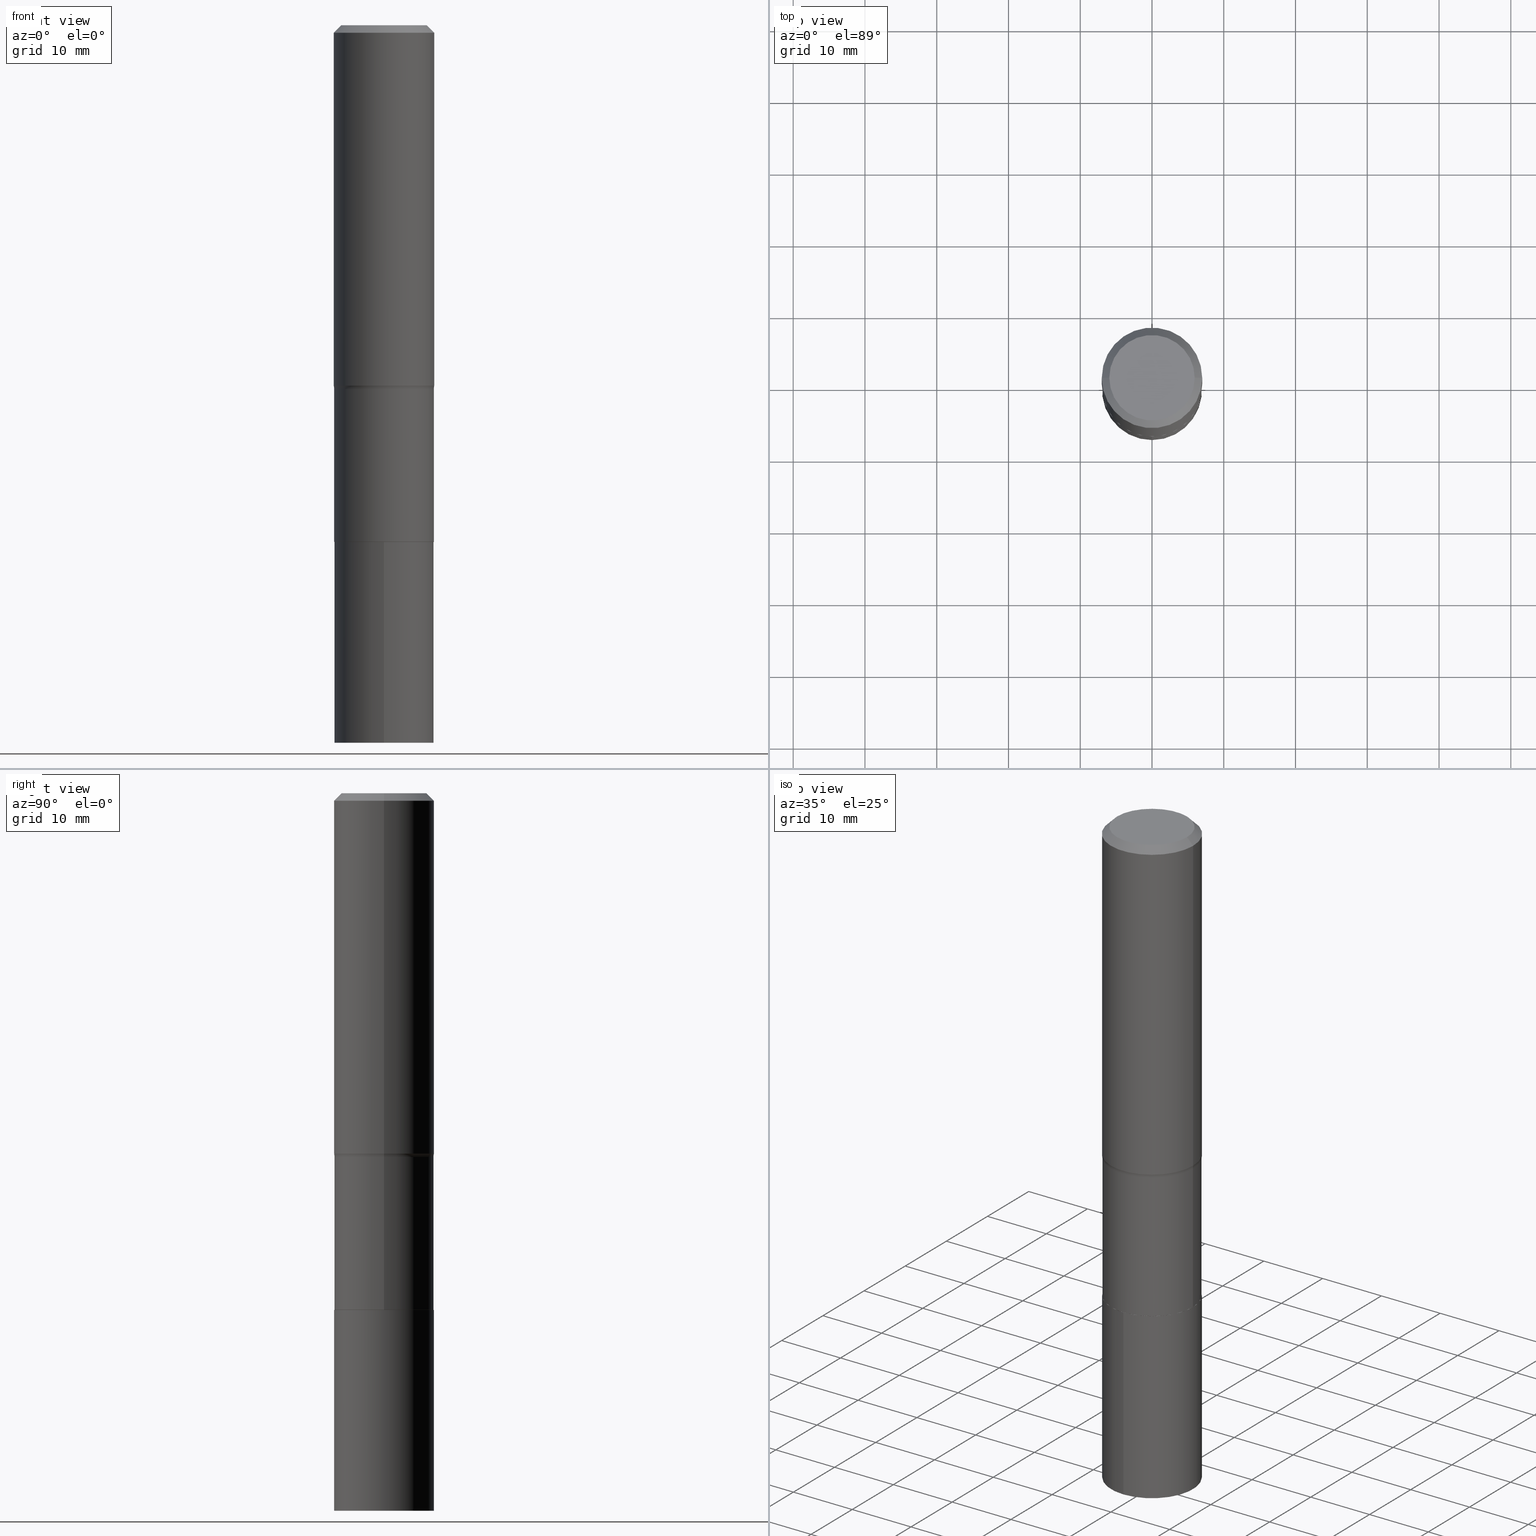
[diagram: canonical four-view strip — front | top / right | iso, engineering-drawing reading convention]
A machine part, canonical four-view strip (front | top / right | iso — engineering-drawing reading convention). The complete STEP part file that produces these views, byte-faithful:
ISO-10303-21;
HEADER;
FILE_DESCRIPTION (( 'STEP AP203' ),
    '1' );
FILE_NAME ('58536.STEP',
    '2024-04-19T14:41:50',
    ( '' ),
    ( '' ),
    'SwSTEP 2.0',
    'SolidWorks 2023',
    '' );
FILE_SCHEMA (( 'CONFIG_CONTROL_DESIGN' ));
ENDSEC;

DATA;
#1 = CARTESIAN_POINT ( 'NONE',  ( 1.942979110936090781E-15, 0.2734499999999901454, -2.835000000000000853 ) ) ;
#2 = ORIENTED_EDGE ( 'NONE', *, *, #462, .F. ) ;
#3 = DIRECTION ( 'NONE',  ( -6.982962677686265922E-15, -1.000000000000000000, 3.996120670929621909E-15 ) ) ;
#4 = ORIENTED_EDGE ( 'NONE', *, *, #131, .F. ) ;
#5 = AXIS2_PLACEMENT_3D ( 'NONE', #386, #62, #35 ) ;
#6 = DIRECTION ( 'NONE',  ( -2.445506570297261110E-29, 3.491427258485183651E-15, 1.000000000000000000 ) ) ;
#7 = AXIS2_PLACEMENT_3D ( 'NONE', #331, #83, #183 ) ;
#8 = DIRECTION ( 'NONE',  ( -2.445468806185136597E-29, 3.491481338843145583E-15, 1.000000000000000000 ) ) ;
#9 = ADVANCED_FACE ( 'NONE', ( #313 ), #358, .T. ) ;
#10 = ORIENTED_EDGE ( 'NONE', *, *, #234, .T. ) ;
#11 = DIRECTION ( 'NONE',  ( -2.445468806185136597E-29, 3.491481338843145583E-15, 1.000000000000000000 ) ) ;
#12 = DIRECTION ( 'NONE',  ( -2.445468806185136597E-29, 3.491481338843145583E-15, 1.000000000000000000 ) ) ;
#13 = VECTOR ( 'NONE', #318, 39.37007874015748143 ) ;
#14 = ORIENTED_EDGE ( 'NONE', *, *, #41, .F. ) ;
#15 = AXIS2_PLACEMENT_3D ( 'NONE', #378, #12, #451 ) ;
#16 = CARTESIAN_POINT ( 'NONE',  ( 9.627852306002447774E-29, -1.374590243447099296E-14, -3.937000000000001165 ) ) ;
#17 = ORIENTED_EDGE ( 'NONE', *, *, #208, .F. ) ;
#18 = CARTESIAN_POINT ( 'NONE',  ( 4.836104818574080005E-29, -6.904675980341459968E-15, -1.977577798720021152 ) ) ;
#19 = ORIENTED_EDGE ( 'NONE', *, *, #422, .T. ) ;
#20 = ORIENTED_EDGE ( 'NONE', *, *, #38, .F. ) ;
#21 = AXIS2_PLACEMENT_3D ( 'NONE', #286, #393, #72 ) ;
#22 = AXIS2_PLACEMENT_3D ( 'NONE', #16, #164, #239 ) ;
#23 = CARTESIAN_POINT ( 'NONE',  ( -1.002970424325033577E-46, 1.431975951230896486E-32, 4.101342130344485961E-18 ) ) ;
#24 = VERTEX_POINT ( 'NONE', #207 ) ;
#25 = PERSON_AND_ORGANIZATION ( #147, #194 ) ;
#26 = LINE ( 'NONE', #141, #273 ) ;
#27 = CC_DESIGN_DATE_AND_TIME_ASSIGNMENT ( #248, #246, ( #399 ) ) ;
#28 = CARTESIAN_POINT ( 'NONE',  ( 1.942979110936076976E-15, 0.2734499999999862596, -3.937000000000002498 ) ) ;
#29 = VECTOR ( 'NONE', #395, 39.37007874015748143 ) ;
#30 = CONICAL_SURFACE ( 'NONE', #15, 0.2729500000000000259, 0.7853981633972775267 ) ;
#31 = APPROVAL_ROLE ( '' ) ;
#32 = CARTESIAN_POINT ( 'NONE',  ( 0.2734499999999999709, -1.909491144213309629E-15, 1.333390539341398475E-29 ) ) ;
#33 = APPROVAL_STATUS ( 'not_yet_approved' ) ;
#34 = CARTESIAN_POINT ( 'NONE',  ( 6.932904065534861534E-29, -9.898349595620316510E-15, -2.834999999999999520 ) ) ;
#35 = DIRECTION ( 'NONE',  ( -6.982962677686265922E-15, -1.000000000000000000, 3.996120670929621909E-15 ) ) ;
#36 =( GEOMETRIC_REPRESENTATION_CONTEXT ( 3 ) GLOBAL_UNCERTAINTY_ASSIGNED_CONTEXT ( ( #290 ) ) GLOBAL_UNIT_ASSIGNED_CONTEXT ( ( #49, #309, #137 ) ) REPRESENTATION_CONTEXT ( 'NONE', 'WORKASPACE' ) );
#37 = DIRECTION ( 'NONE',  ( -6.982962677686265922E-15, -1.000000000000000000, 3.996120670929621909E-15 ) ) ;
#38 = EDGE_CURVE ( 'NONE', #403, #278, #349, .T. ) ;
#39 = DIRECTION ( 'NONE',  ( -2.445468806185136597E-29, 3.491481338843145583E-15, 1.000000000000000000 ) ) ;
#40 = CARTESIAN_POINT ( 'NONE',  ( 1.010956804476941872E-30, -1.443378385477765316E-16, -0.04134000000000025848 ) ) ;
#41 = EDGE_CURVE ( 'NONE', #328, #24, #26, .T. ) ;
#42 = CARTESIAN_POINT ( 'NONE',  ( -1.002970424325033577E-46, 1.431975951230896486E-32, 4.101342130344485961E-18 ) ) ;
#43 = VECTOR ( 'NONE', #201, 39.37007874015748143 ) ;
#44 = CYLINDRICAL_SURFACE ( 'NONE', #412, 0.2756000000000001227 ) ;
#45 = APPROVAL ( #99, 'UNSPECIFIED' ) ;
#46 = FACE_OUTER_BOUND ( 'NONE', #310, .T. ) ;
#47 = ORIENTED_EDGE ( 'NONE', *, *, #48, .T. ) ;
#48 = EDGE_CURVE ( 'NONE', #89, #325, #252, .T. ) ;
#49 =( CONVERSION_BASED_UNIT ( 'INCH', #232 ) LENGTH_UNIT ( ) NAMED_UNIT ( #78 ) );
#50 = CLOSED_SHELL ( 'NONE', ( #117, #9, #215, #80, #311, #191, #126, #292, #74, #357, #250, #371 ) ) ;
#51 = ORIENTED_EDGE ( 'NONE', *, *, #314, .F. ) ;
#52 = CIRCLE ( 'NONE', #420, 0.2734500000000000264 ) ;
#53 = CARTESIAN_POINT ( 'NONE',  ( 4.881155737145533024E-29, -6.968996752330918348E-15, -1.995999999999999996 ) ) ;
#54 = ORIENTED_EDGE ( 'NONE', *, *, #131, .T. ) ;
#55 = DIRECTION ( 'NONE',  ( 1.000000000000000000, -6.982962677686267499E-15, 4.876157962347795834E-29 ) ) ;
#56 = ORIENTED_EDGE ( 'NONE', *, *, #111, .F. ) ;
#57 = DIRECTION ( 'NONE',  ( -6.982962677686265922E-15, -1.000000000000000000, 3.996120670929621909E-15 ) ) ;
#58 = EDGE_LOOP ( 'NONE', ( #407, #186 ) ) ;
#59 = AXIS2_PLACEMENT_3D ( 'NONE', #397, #73, #37 ) ;
#60 = CC_DESIGN_APPROVAL ( #218, ( #221 ) ) ;
#61 = CALENDAR_DATE ( 2024, 19, 4 ) ;
#62 = DIRECTION ( 'NONE',  ( -2.445506570297261110E-29, 3.491427258485183651E-15, 1.000000000000000000 ) ) ;
#63 = DATE_AND_TIME ( #61, #384 ) ;
#64 = DIRECTION ( 'NONE',  ( 1.000000000000000000, -6.982962677686268288E-15, 4.883557194083113462E-29 ) ) ;
#65 = EDGE_CURVE ( 'NONE', #278, #130, #281, .T. ) ;
#66 = DIRECTION ( 'NONE',  ( 0.000000000000000000, 0.000000000000000000, 1.000000000000000000 ) ) ;
#67 = CARTESIAN_POINT ( 'NONE',  ( 1.010956804476941872E-30, -1.443378385477765316E-16, -0.04134000000000025848 ) ) ;
#68 = CIRCLE ( 'NONE', #123, 0.2734500000000000264 ) ;
#69 = CIRCLE ( 'NONE', #368, 0.2756000000000000116 ) ;
#70 = DATE_TIME_ROLE ( 'classification_date' ) ;
#71 = PERSON_AND_ORGANIZATION_ROLE ( 'creator' ) ;
#72 = DIRECTION ( 'NONE',  ( -1.000000000000000000, 6.982962677686267499E-15, 0.000000000000000000 ) ) ;
#73 = DIRECTION ( 'NONE',  ( -2.445506570297261110E-29, 3.491427258485183651E-15, 1.000000000000000000 ) ) ;
#74 = ADVANCED_FACE ( 'NONE', ( #102 ), #315, .T. ) ;
#75 = VECTOR ( 'NONE', #354, 39.37007874015748143 ) ;
#76 = AXIS2_PLACEMENT_3D ( 'NONE', #408, #122, #57 ) ;
#77 = FACE_OUTER_BOUND ( 'NONE', #237, .T. ) ;
#78 = DIMENSIONAL_EXPONENTS ( 1.000000000000000000, 0.000000000000000000, 0.000000000000000000, 0.000000000000000000, 0.000000000000000000, 0.000000000000000000, 0.000000000000000000 ) ;
#79 = CYLINDRICAL_SURFACE ( 'NONE', #289, 0.2734500000000000264 ) ;
#80 = ADVANCED_FACE ( 'NONE', ( #388 ), #288, .F. ) ;
#81 = DIRECTION ( 'NONE',  ( 1.000000000000000000, -6.982962677686267499E-15, 4.876176775795935793E-29 ) ) ;
#82 = AXIS2_PLACEMENT_3D ( 'NONE', #181, #255, #283 ) ;
#83 = DIRECTION ( 'NONE',  ( -6.982962677686266711E-15, -1.000000000000000000, 3.491481338843145583E-15 ) ) ;
#84 = APPROVAL_PERSON_ORGANIZATION ( #355, #45, #171 ) ;
#85 = EDGE_CURVE ( 'NONE', #382, #403, #341, .T. ) ;
#86 = DIRECTION ( 'NONE',  ( 2.445506570297260549E-29, -3.491427258485183651E-15, -1.000000000000000000 ) ) ;
#87 = ORIENTED_EDGE ( 'NONE', *, *, #180, .T. ) ;
#88 = CARTESIAN_POINT ( 'NONE',  ( -0.2729500000000000259, -7.956273971189012456E-15, -2.834999999999999520 ) ) ;
#89 = VERTEX_POINT ( 'NONE', #28 ) ;
#90 = CC_DESIGN_SECURITY_CLASSIFICATION ( #221, ( #429 ) ) ;
#91 = CARTESIAN_POINT ( 'NONE',  ( -0.2756000000000000116, 1.780166675422558965E-15, -0.04134000000000025848 ) ) ;
#92 = ORIENTED_EDGE ( 'NONE', *, *, #455, .F. ) ;
#93 = DIRECTION ( 'NONE',  ( -2.445468806185136597E-29, 3.491481338843145583E-15, 1.000000000000000000 ) ) ;
#94 = VERTEX_POINT ( 'NONE', #320 ) ;
#95 = CARTESIAN_POINT ( 'NONE',  ( 6.932904065534861534E-29, -9.898349595620316510E-15, -2.834999999999999520 ) ) ;
#96 = VECTOR ( 'NONE', #152, 39.37007874015748143 ) ;
#97 = DIRECTION ( 'NONE',  ( -2.445468806185136597E-29, 3.491481338843145583E-15, 1.000000000000000000 ) ) ;
#98 = CC_DESIGN_PERSON_AND_ORGANIZATION_ASSIGNMENT ( #25, #209, ( #418 ) ) ;
#99 = APPROVAL_STATUS ( 'not_yet_approved' ) ;
#100 = DIRECTION ( 'NONE',  ( 1.000000000000000000, -6.982962677686265922E-15, 0.000000000000000000 ) ) ;
#101 = CALENDAR_DATE ( 2024, 19, 4 ) ;
#102 = FACE_OUTER_BOUND ( 'NONE', #454, .T. ) ;
#103 = CALENDAR_DATE ( 2024, 19, 4 ) ;
#104 = DIRECTION ( 'NONE',  ( 1.000000000000000000, -6.982962677686266711E-15, 0.000000000000000000 ) ) ;
#105 = EDGE_CURVE ( 'NONE', #414, #130, #449, .T. ) ;
#106 = DIRECTION ( 'NONE',  ( 1.000000000000000000, -6.982962677686267499E-15, 4.876176775795935793E-29 ) ) ;
#107 = DIRECTION ( 'NONE',  ( 1.000000000000000000, -6.982962677686265922E-15, 4.876176775795935793E-29 ) ) ;
#108 = TOROIDAL_SURFACE ( 'NONE', #202, 0.3534499999999998754, 0.07999999999999996003 ) ;
#109 = AXIS2_PLACEMENT_3D ( 'NONE', #230, #405, #376 ) ;
#110 = CARTESIAN_POINT ( 'NONE',  ( -1.909491144213240209E-15, -0.2734500000000099074, -2.834999999999998632 ) ) ;
#111 = EDGE_CURVE ( 'NONE', #424, #89, #465, .T. ) ;
#112 = CYLINDRICAL_SURFACE ( 'NONE', #296, 0.2756000000000001227 ) ;
#113 = DIRECTION ( 'NONE',  ( 1.000000000000000000, -6.982962677686267499E-15, 4.876157962347795834E-29 ) ) ;
#114 = ORIENTED_EDGE ( 'NONE', *, *, #111, .T. ) ;
#115 = CIRCLE ( 'NONE', #302, 0.2734500000000000264 ) ;
#116 = DIRECTION ( 'NONE',  ( -6.982962677686265922E-15, -1.000000000000000000, 3.491427258485183651E-15 ) ) ;
#117 = ADVANCED_FACE ( 'NONE', ( #468 ), #213, .T. ) ;
#118 = PLANE ( 'NONE',  #235 ) ;
#119 = ORIENTED_EDGE ( 'NONE', *, *, #269, .F. ) ;
#120 = PLANE ( 'NONE',  #280 ) ;
#121 = ORIENTED_EDGE ( 'NONE', *, *, #269, .T. ) ;
#122 = DIRECTION ( 'NONE',  ( -2.445506570297261110E-29, 3.491427258485183651E-15, 1.000000000000000000 ) ) ;
#123 = AXIS2_PLACEMENT_3D ( 'NONE', #352, #138, #329 ) ;
#124 = EDGE_LOOP ( 'NONE', ( #4, #377, #270, #379 ) ) ;
#125 = CIRCLE ( 'NONE', #59, 0.2734500000000000264 ) ;
#126 = ADVANCED_FACE ( 'NONE', ( #144 ), #108, .F. ) ;
#127 = DIRECTION ( 'NONE',  ( 1.000000000000000000, -6.982962677686265922E-15, 0.000000000000000000 ) ) ;
#128 = ORIENTED_EDGE ( 'NONE', *, *, #65, .T. ) ;
#129 = SHAPE_DEFINITION_REPRESENTATION ( #161, #140 ) ;
#130 = VERTEX_POINT ( 'NONE', #346 ) ;
#131 = EDGE_CURVE ( 'NONE', #414, #167, #210, .T. ) ;
#132 = DIRECTION ( 'NONE',  ( -2.445468806185136597E-29, 3.491481338843145583E-15, 1.000000000000000000 ) ) ;
#133 = AXIS2_PLACEMENT_3D ( 'NONE', #34, #132, #104 ) ;
#134 = DATE_AND_TIME ( #103, #458 ) ;
#135 = CC_DESIGN_PERSON_AND_ORGANIZATION_ASSIGNMENT ( #287, #174, ( #429 ) ) ;
#136 = CARTESIAN_POINT ( 'NONE',  ( 4.836104818574080005E-29, -6.904675980341459968E-15, -1.977577798720021152 ) ) ;
#137 =( NAMED_UNIT ( * ) SI_UNIT ( $, .STERADIAN. ) SOLID_ANGLE_UNIT ( ) );
#138 = DIRECTION ( 'NONE',  ( -2.445468806185136597E-29, 3.491481338843145583E-15, 1.000000000000000000 ) ) ;
#139 = CARTESIAN_POINT ( 'NONE',  ( 0.000000000000000000, 0.000000000000000000, 0.000000000000000000 ) ) ;
#140 = ADVANCED_BREP_SHAPE_REPRESENTATION ( '58536', ( #396, #242, #168 ), #36 ) ;
#141 = CARTESIAN_POINT ( 'NONE',  ( 0.2756000000000001227, -1.924504513970336137E-15, 1.343874319409360548E-29 ) ) ;
#142 = AXIS2_PLACEMENT_3D ( 'NONE', #95, #245, #219 ) ;
#143 = LOCAL_TIME ( 10, 41, 50.00000000000000000, #463 ) ;
#144 = FACE_OUTER_BOUND ( 'NONE', #261, .T. ) ;
#145 = DIRECTION ( 'NONE',  ( -2.445468806185136597E-29, 3.491481338843145583E-15, 1.000000000000000000 ) ) ;
#146 = EDGE_LOOP ( 'NONE', ( #114, #47, #51, #443 ) ) ;
#147 = PERSON ( 'UNSPECIFIED', 'UNSPECIFIED', 'UNSPECIFIED', ('UNSPECIFIED'), ('UNSPECIFIED'), ('UNSPECIFIED') ) ;
#148 = EDGE_CURVE ( 'NONE', #200, #94, #461, .T. ) ;
#149 = DIRECTION ( 'NONE',  ( -2.445468806185136597E-29, 3.491481338843145583E-15, 1.000000000000000000 ) ) ;
#150 = CLOSED_SHELL ( 'NONE', ( #227, #387, #394, #432 ) ) ;
#151 = AXIS2_PLACEMENT_3D ( 'NONE', #437, #299, #366 ) ;
#152 = DIRECTION ( 'NONE',  ( 0.7071067811865452413, -7.319954787623248157E-15, -0.7071067811865497932 ) ) ;
#153 = DIRECTION ( 'NONE',  ( 1.000000000000000000, -6.982962677686267499E-15, 4.876176775795935793E-29 ) ) ;
#154 = ORIENTED_EDGE ( 'NONE', *, *, #303, .T. ) ;
#155 = DIRECTION ( 'NONE',  ( 1.000000000000000000, -6.982962677686264344E-15, 0.000000000000000000 ) ) ;
#156 = EDGE_CURVE ( 'NONE', #414, #328, #411, .T. ) ;
#157 = AXIS2_PLACEMENT_3D ( 'NONE', #67, #426, #322 ) ;
#158 = VECTOR ( 'NONE', #236, 39.37007874015748143 ) ;
#159 = DIRECTION ( 'NONE',  ( -2.445468806185136597E-29, 3.491481338843145583E-15, 1.000000000000000000 ) ) ;
#160 = ORIENTED_EDGE ( 'NONE', *, *, #156, .F. ) ;
#161 = PRODUCT_DEFINITION_SHAPE ( 'NONE', 'NONE',  #399 ) ;
#162 = CARTESIAN_POINT ( 'NONE',  ( -5.014852121625167883E-47, 7.159879756154482429E-33, 2.050671065172242981E-18 ) ) ;
#163 = ORIENTED_EDGE ( 'NONE', *, *, #284, .T. ) ;
#164 = DIRECTION ( 'NONE',  ( -2.445506570297261110E-29, 3.491427258485183651E-15, 1.000000000000000000 ) ) ;
#165 = VERTEX_POINT ( 'NONE', #249 ) ;
#166 = PLANE ( 'NONE',  #188 ) ;
#167 = VERTEX_POINT ( 'NONE', #389 ) ;
#168 = AXIS2_PLACEMENT_3D ( 'NONE', #139, #66, #428 ) ;
#169 = DATE_AND_TIME ( #319, #203 ) ;
#170 = ORIENTED_EDGE ( 'NONE', *, *, #148, .T. ) ;
#171 = APPROVAL_ROLE ( '' ) ;
#172 = CARTESIAN_POINT ( 'NONE',  ( 4.881155737145533024E-29, -6.968996752330918348E-15, -1.995999999999999996 ) ) ;
#173 = CC_DESIGN_PERSON_AND_ORGANIZATION_ASSIGNMENT ( #453, #251, ( #429 ) ) ;
#174 = PERSON_AND_ORGANIZATION_ROLE ( 'design_supplier' ) ;
#175 = ORIENTED_EDGE ( 'NONE', *, *, #38, .T. ) ;
#176 = PERSON_AND_ORGANIZATION ( #147, #194 ) ;
#177 = DIRECTION ( 'NONE',  ( -2.445468806185136877E-29, 3.491481338843145188E-15, 1.000000000000000000 ) ) ;
#178 = PERSON_AND_ORGANIZATION_ROLE ( 'classification_officer' ) ;
#179 = CARTESIAN_POINT ( 'NONE',  ( -0.2756000000000001227, 1.958255779754836984E-15, -1.355658510874252567E-29 ) ) ;
#180 = EDGE_CURVE ( 'NONE', #200, #278, #68, .T. ) ;
#181 = CARTESIAN_POINT ( 'NONE',  ( 4.881155737145533024E-29, -6.968996752330918348E-15, -1.995999999999999996 ) ) ;
#182 = LOCAL_TIME ( 10, 41, 50.00000000000000000, #216 ) ;
#183 = DIRECTION ( 'NONE',  ( 1.000000000000000000, -6.982962677686262766E-15, 0.000000000000000000 ) ) ;
#184 = EDGE_CURVE ( 'NONE', #165, #312, #391, .T. ) ;
#185 = DIRECTION ( 'NONE',  ( 1.000000000000000000, -6.982962677686267499E-15, 0.000000000000000000 ) ) ;
#186 = ORIENTED_EDGE ( 'NONE', *, *, #347, .F. ) ;
#187 = FACE_OUTER_BOUND ( 'NONE', #146, .T. ) ;
#188 = AXIS2_PLACEMENT_3D ( 'NONE', #370, #86, #198 ) ;
#189 = CARTESIAN_POINT ( 'NONE',  ( 0.000000000000000000, 0.000000000000000000, 0.000000000000000000 ) ) ;
#190 = DIRECTION ( 'NONE',  ( -2.445468806185136597E-29, 3.491481338843145583E-15, 1.000000000000000000 ) ) ;
#191 = ADVANCED_FACE ( 'NONE', ( #401 ), #400, .T. ) ;
#192 =( LENGTH_UNIT ( ) NAMED_UNIT ( * ) SI_UNIT ( $, .METRE. ) );
#193 = EDGE_LOOP ( 'NONE', ( #416, #175, #436, #238 ) ) ;
#194 = ORGANIZATION ( 'UNSPECIFIED', 'UNSPECIFIED', '' ) ;
#195 = FACE_OUTER_BOUND ( 'NONE', #233, .T. ) ;
#196 = ORIENTED_EDGE ( 'NONE', *, *, #427, .T. ) ;
#197 = CC_DESIGN_PERSON_AND_ORGANIZATION_ASSIGNMENT ( #176, #71, ( #399 ) ) ;
#198 = DIRECTION ( 'NONE',  ( 6.982962677686265922E-15, 1.000000000000000000, -3.491427258485183651E-15 ) ) ;
#199 = ORIENTED_EDGE ( 'NONE', *, *, #48, .F. ) ;
#200 = VERTEX_POINT ( 'NONE', #433 ) ;
#201 = DIRECTION ( 'NONE',  ( -0.7071067811865452413, 2.468850131082233000E-15, -0.7071067811865497932 ) ) ;
#202 = AXIS2_PLACEMENT_3D ( 'NONE', #172, #97, #64 ) ;
#203 = LOCAL_TIME ( 10, 41, 50.00000000000000000, #456 ) ;
#204 = EDGE_LOOP ( 'NONE', ( #272, #452, #170, #119 ) ) ;
#205 = CC_DESIGN_APPROVAL ( #45, ( #429 ) ) ;
#206 = CALENDAR_DATE ( 2024, 19, 4 ) ;
#207 = CARTESIAN_POINT ( 'NONE',  ( 0.2756000000000000116, -2.068842352518111732E-15, -0.04134000000000025848 ) ) ;
#208 = EDGE_CURVE ( 'NONE', #325, #308, #115, .T. ) ;
#209 = PERSON_AND_ORGANIZATION_ROLE ( 'design_owner' ) ;
#210 = LINE ( 'NONE', #179, #419 ) ;
#211 = PERSON_AND_ORGANIZATION ( #147, #194 ) ;
#212 = CARTESIAN_POINT ( 'NONE',  ( -0.3534499999999998754, -4.457583452786844732E-15, -1.995999999999999996 ) ) ;
#213 = CONICAL_SURFACE ( 'NONE', #133, 0.2729500000000000259, 0.7853981633972775267 ) ;
#214 = CIRCLE ( 'NONE', #109, 0.2729500000000000259 ) ;
#215 = ADVANCED_FACE ( 'NONE', ( #77 ), #44, .T. ) ;
#216 = COORDINATED_UNIVERSAL_TIME_OFFSET ( 5, 0, .BEHIND. ) ;
#217 = ORIENTED_EDGE ( 'NONE', *, *, #422, .F. ) ;
#218 = APPROVAL ( #33, 'UNSPECIFIED' ) ;
#219 = DIRECTION ( 'NONE',  ( 1.000000000000000000, -6.982962677686266711E-15, 0.000000000000000000 ) ) ;
#220 = LINE ( 'NONE', #434, #330 ) ;
#221 = SECURITY_CLASSIFICATION ( '', '', #353 ) ;
#222 = CARTESIAN_POINT ( 'NONE',  ( 6.932904065534861534E-29, -9.898349595620316510E-15, -2.834999999999999520 ) ) ;
#223 = EDGE_LOOP ( 'NONE', ( #20, #417, #340, #367 ) ) ;
#224 = DIRECTION ( 'NONE',  ( -2.445506570297261110E-29, 3.491427258485183651E-15, 1.000000000000000000 ) ) ;
#225 = CARTESIAN_POINT ( 'NONE',  ( 4.881155737145533024E-29, -6.968996752330918348E-15, -1.995999999999999996 ) ) ;
#226 = AXIS2_PLACEMENT_3D ( 'NONE', #18, #447, #127 ) ;
#227 = ADVANCED_FACE ( 'NONE', ( #187 ), #79, .T. ) ;
#228 = FACE_OUTER_BOUND ( 'NONE', #58, .T. ) ;
#229 = ORIENTED_EDGE ( 'NONE', *, *, #105, .T. ) ;
#230 = CARTESIAN_POINT ( 'NONE',  ( 6.932904065534861534E-29, -9.898349595620316510E-15, -2.834999999999999520 ) ) ;
#231 = ORIENTED_EDGE ( 'NONE', *, *, #184, .F. ) ;
#232 = LENGTH_MEASURE_WITH_UNIT ( LENGTH_MEASURE( 0.02539999999999999897 ), #192 );
#233 = EDGE_LOOP ( 'NONE', ( #56, #217 ) ) ;
#234 = EDGE_CURVE ( 'NONE', #328, #94, #266, .T. ) ;
#235 = AXIS2_PLACEMENT_3D ( 'NONE', #343, #444, #116 ) ;
#236 = DIRECTION ( 'NONE',  ( 0.7071067811864267805, -2.468850131080992517E-15, 0.7071067811866682540 ) ) ;
#237 = EDGE_LOOP ( 'NONE', ( #295, #54, #409, #14 ) ) ;
#238 = ORIENTED_EDGE ( 'NONE', *, *, #410, .F. ) ;
#239 = DIRECTION ( 'NONE',  ( -6.982962677686265922E-15, -1.000000000000000000, 3.996120670929621909E-15 ) ) ;
#240 = ORIENTED_EDGE ( 'NONE', *, *, #105, .F. ) ;
#241 = APPROVAL_DATE_TIME ( #345, #45 ) ;
#242 = MANIFOLD_SOLID_BREP ( 'Body-Move/Copy2[2]', #50 ) ;
#243 = AXIS2_PLACEMENT_3D ( 'NONE', #53, #159, #413 ) ;
#244 = DESIGN_CONTEXT ( 'detailed design', #317, 'design' ) ;
#245 = DIRECTION ( 'NONE',  ( -2.445468806185136597E-29, 3.491481338843145583E-15, 1.000000000000000000 ) ) ;
#246 = DATE_TIME_ROLE ( 'creation_date' ) ;
#247 = CARTESIAN_POINT ( 'NONE',  ( 1.942979110936063171E-15, 0.2734499999999901454, -2.835000000000000853 ) ) ;
#248 = DATE_AND_TIME ( #101, #182 ) ;
#249 = CARTESIAN_POINT ( 'NONE',  ( 0.2342600000000000238, -1.821115673845785155E-15, 4.101342130356573868E-18 ) ) ;
#250 = ADVANCED_FACE ( 'NONE', ( #228 ), #332, .F. ) ;
#251 = PERSON_AND_ORGANIZATION_ROLE ( 'creator' ) ;
#252 = LINE ( 'NONE', #247, #75 ) ;
#253 = AXIS2_PLACEMENT_3D ( 'NONE', #42, #145, #113 ) ;
#254 = COORDINATED_UNIVERSAL_TIME_OFFSET ( 5, 0, .BEHIND. ) ;
#255 = DIRECTION ( 'NONE',  ( -2.445468806185136597E-29, 3.491481338843145583E-15, 1.000000000000000000 ) ) ;
#256 = CARTESIAN_POINT ( 'NONE',  ( -0.2342600000000000238, 1.707997756148671759E-15, 4.101342130332794026E-18 ) ) ;
#257 = CYLINDRICAL_SURFACE ( 'NONE', #351, 0.2734499999999999709 ) ;
#258 = ORIENTED_EDGE ( 'NONE', *, *, #427, .F. ) ;
#259 = AXIS2_PLACEMENT_3D ( 'NONE', #225, #11, #155 ) ;
#260 = CARTESIAN_POINT ( 'NONE',  ( 0.000000000000000000, 0.000000000000000000, 0.000000000000000000 ) ) ;
#261 = EDGE_LOOP ( 'NONE', ( #240, #446, #10, #196 ) ) ;
#262 = DIRECTION ( 'NONE',  ( 1.000000000000000000, -6.982962677686267499E-15, 4.876176775795935793E-29 ) ) ;
#263 = EDGE_CURVE ( 'NONE', #167, #24, #69, .T. ) ;
#264 = DIRECTION ( 'NONE',  ( -2.445506570297261110E-29, 3.491427258485183651E-15, 1.000000000000000000 ) ) ;
#265 = AXIS2_PLACEMENT_3D ( 'NONE', #136, #464, #100 ) ;
#266 = CIRCLE ( 'NONE', #7, 0.07999999999999996003 ) ;
#267 = PRODUCT_RELATED_PRODUCT_CATEGORY ( 'detail', '', ( #418 ) ) ;
#268 = LINE ( 'NONE', #335, #158 ) ;
#269 = EDGE_CURVE ( 'NONE', #130, #94, #360, .T. ) ;
#270 = ORIENTED_EDGE ( 'NONE', *, *, #41, .T. ) ;
#271 = CYLINDRICAL_SURFACE ( 'NONE', #76, 0.2734500000000000264 ) ;
#272 = ORIENTED_EDGE ( 'NONE', *, *, #65, .F. ) ;
#273 = VECTOR ( 'NONE', #177, 39.37007874015748143 ) ;
#274 = CARTESIAN_POINT ( 'NONE',  ( -0.2756000000000002892, -4.946420200586621012E-15, -1.977577798720021152 ) ) ;
#275 = EDGE_LOOP ( 'NONE', ( #160, #229, #121, #306 ) ) ;
#276 = LINE ( 'NONE', #91, #43 ) ;
#277 = EDGE_LOOP ( 'NONE', ( #231, #154, #459, #92 ) ) ;
#278 = VERTEX_POINT ( 'NONE', #294 ) ;
#279 = APPLICATION_PROTOCOL_DEFINITION ( 'international standard', 'config_control_design', 1994, #317 ) ;
#280 = AXIS2_PLACEMENT_3D ( 'NONE', #162, #307, #381 ) ;
#281 = LINE ( 'NONE', #457, #29 ) ;
#282 = MECHANICAL_CONTEXT ( 'NONE', #326, 'mechanical' ) ;
#283 = DIRECTION ( 'NONE',  ( 1.000000000000000000, -6.982962677686268288E-15, 4.883557194083113462E-29 ) ) ;
#284 = EDGE_CURVE ( 'NONE', #424, #308, #220, .T. ) ;
#285 = APPLICATION_PROTOCOL_DEFINITION ( 'international standard', 'config_control_design', 1994, #326 ) ;
#286 = CARTESIAN_POINT ( 'NONE',  ( 1.010956804476941872E-30, -1.443378385477765316E-16, -0.04134000000000025848 ) ) ;
#287 = PERSON_AND_ORGANIZATION ( #147, #194 ) ;
#288 = TOROIDAL_SURFACE ( 'NONE', #82, 0.3534499999999998754, 0.07999999999999996003 ) ;
#289 = AXIS2_PLACEMENT_3D ( 'NONE', #222, #6, #3 ) ;
#290 = UNCERTAINTY_MEASURE_WITH_UNIT (LENGTH_MEASURE( 1.000000000000000082E-05 ), #49, 'distance_accuracy_value', 'NONE');
#291 = DIRECTION ( 'NONE',  ( -0.7071067811864267805, 7.493145998869918709E-15, 0.7071067811866682540 ) ) ;
#292 = ADVANCED_FACE ( 'NONE', ( #359 ), #112, .T. ) ;
#293 = CARTESIAN_POINT ( 'NONE',  ( 6.932904065534861534E-29, -9.898349595620316510E-15, -2.834999999999999520 ) ) ;
#294 = CARTESIAN_POINT ( 'NONE',  ( -0.2734500000000000819, -6.489821192704911743E-15, -2.834499999999999353 ) ) ;
#295 = ORIENTED_EDGE ( 'NONE', *, *, #364, .T. ) ;
#296 = AXIS2_PLACEMENT_3D ( 'NONE', #327, #149, #262 ) ;
#297 = CARTESIAN_POINT ( 'NONE',  ( 0.000000000000000000, 0.000000000000000000, 0.000000000000000000 ) ) ;
#298 = EDGE_CURVE ( 'NONE', #24, #167, #441, .T. ) ;
#299 = DIRECTION ( 'NONE',  ( -2.445468806185136597E-29, 3.491481338843145583E-15, 1.000000000000000000 ) ) ;
#300 = ORIENTED_EDGE ( 'NONE', *, *, #263, .T. ) ;
#301 = CARTESIAN_POINT ( 'NONE',  ( 6.931681331131768733E-29, -9.896603854950894217E-15, -2.834499999999999353 ) ) ;
#302 = AXIS2_PLACEMENT_3D ( 'NONE', #293, #264, #402 ) ;
#303 = EDGE_CURVE ( 'NONE', #165, #24, #324, .T. ) ;
#304 = ORIENTED_EDGE ( 'NONE', *, *, #208, .T. ) ;
#305 = CARTESIAN_POINT ( 'NONE',  ( 0.2729500000000000259, -1.180434925849478431E-14, -2.834999999999999520 ) ) ;
#306 = ORIENTED_EDGE ( 'NONE', *, *, #234, .F. ) ;
#307 = DIRECTION ( 'NONE',  ( 2.438088387897960049E-29, -3.491481338843145188E-15, -1.000000000000000000 ) ) ;
#308 = VERTEX_POINT ( 'NONE', #110 ) ;
#309 =( NAMED_UNIT ( * ) PLANE_ANGLE_UNIT ( ) SI_UNIT ( $, .RADIAN. ) );
#310 = EDGE_LOOP ( 'NONE', ( #199, #19, #163, #17 ) ) ;
#311 = ADVANCED_FACE ( 'NONE', ( #431 ), #257, .T. ) ;
#312 = VERTEX_POINT ( 'NONE', #256 ) ;
#313 = FACE_OUTER_BOUND ( 'NONE', #277, .T. ) ;
#314 = EDGE_CURVE ( 'NONE', #308, #325, #125, .T. ) ;
#315 = CONICAL_SURFACE ( 'NONE', #21, 0.2756000000000000116, 0.7853981633974450594 ) ;
#316 = DIRECTION ( 'NONE',  ( -2.445468806185136877E-29, 3.491481338843145188E-15, 1.000000000000000000 ) ) ;
#317 = APPLICATION_CONTEXT ( 'configuration controlled 3d designs of mechanical parts and assemblies' ) ;
#318 = DIRECTION ( 'NONE',  ( -2.445468806185136877E-29, 3.491481338843145188E-15, 1.000000000000000000 ) ) ;
#319 = CALENDAR_DATE ( 2024, 19, 4 ) ;
#320 = CARTESIAN_POINT ( 'NONE',  ( 0.2734499999999999154, -8.878487896544227582E-15, -1.995999999999999996 ) ) ;
#321 = VECTOR ( 'NONE', #291, 39.37007874015748143 ) ;
#322 = DIRECTION ( 'NONE',  ( -1.000000000000000000, 6.982962677686267499E-15, 0.000000000000000000 ) ) ;
#323 = APPROVAL_PERSON_ORGANIZATION ( #211, #445, #425 ) ;
#324 = LINE ( 'NONE', #365, #96 ) ;
#325 = VERTEX_POINT ( 'NONE', #1 ) ;
#326 = APPLICATION_CONTEXT ( 'configuration controlled 3d designs of mechanical parts and assemblies' ) ;
#327 = CARTESIAN_POINT ( 'NONE',  ( 0.000000000000000000, 0.000000000000000000, 0.000000000000000000 ) ) ;
#328 = VERTEX_POINT ( 'NONE', #398 ) ;
#329 = DIRECTION ( 'NONE',  ( 1.000000000000000000, -6.982962677686264344E-15, 0.000000000000000000 ) ) ;
#330 = VECTOR ( 'NONE', #224, 39.37007874015748143 ) ;
#331 = CARTESIAN_POINT ( 'NONE',  ( 0.3534499999999998754, -9.437124910759127657E-15, -1.995999999999999996 ) ) ;
#332 = PLANE ( 'NONE',  #450 ) ;
#333 = EDGE_LOOP ( 'NONE', ( #344, #439 ) ) ;
#334 = CIRCLE ( 'NONE', #226, 0.2756000000000002892 ) ;
#335 = CARTESIAN_POINT ( 'NONE',  ( 0.2729500000000000259, -1.180434925849478431E-14, -2.834999999999999520 ) ) ;
#336 = EDGE_LOOP ( 'NONE', ( #363, #304 ) ) ;
#337 = DIRECTION ( 'NONE',  ( -2.445468806185136597E-29, 3.491481338843145583E-15, 1.000000000000000000 ) ) ;
#338 = EDGE_LOOP ( 'NONE', ( #87, #128, #258, #372 ) ) ;
#339 = EDGE_CURVE ( 'NONE', #278, #200, #52, .T. ) ;
#340 = ORIENTED_EDGE ( 'NONE', *, *, #410, .T. ) ;
#341 = CIRCLE ( 'NONE', #142, 0.2729500000000000259 ) ;
#342 = AXIS2_PLACEMENT_3D ( 'NONE', #23, #337, #55 ) ;
#343 = CARTESIAN_POINT ( 'NONE',  ( -1.358293912847995967E-29, -2.947868911247539064E-14, -3.937000000000000721 ) ) ;
#344 = ORIENTED_EDGE ( 'NONE', *, *, #462, .T. ) ;
#345 = DATE_AND_TIME ( #206, #143 ) ;
#346 = CARTESIAN_POINT ( 'NONE',  ( -0.2734499999999999154, -6.489821192704912531E-15, -1.995999999999999996 ) ) ;
#347 = EDGE_CURVE ( 'NONE', #403, #382, #214, .T. ) ;
#348 = APPROVAL_DATE_TIME ( #63, #445 ) ;
#349 = LINE ( 'NONE', #430, #321 ) ;
#350 = PERSON_AND_ORGANIZATION ( #147, #194 ) ;
#351 = AXIS2_PLACEMENT_3D ( 'NONE', #189, #438, #106 ) ;
#352 = CARTESIAN_POINT ( 'NONE',  ( 6.931681331131768733E-29, -9.896603854950894217E-15, -2.834499999999999353 ) ) ;
#353 = SECURITY_CLASSIFICATION_LEVEL ( 'unclassified' ) ;
#354 = DIRECTION ( 'NONE',  ( -2.445506570297261110E-29, 3.491427258485183651E-15, 1.000000000000000000 ) ) ;
#355 = PERSON_AND_ORGANIZATION ( #147, #194 ) ;
#356 = DIRECTION ( 'NONE',  ( -1.000000000000000000, 7.105427357601001859E-15, 0.000000000000000000 ) ) ;
#357 = ADVANCED_FACE ( 'NONE', ( #442 ), #120, .F. ) ;
#358 = CONICAL_SURFACE ( 'NONE', #157, 0.2756000000000000116, 0.7853981633974450594 ) ;
#359 = FACE_OUTER_BOUND ( 'NONE', #124, .T. ) ;
#360 = CIRCLE ( 'NONE', #259, 0.2734499999999999154 ) ;
#361 = CC_DESIGN_DATE_AND_TIME_ASSIGNMENT ( #134, #70, ( #221 ) ) ;
#362 = DIRECTION ( 'NONE',  ( -2.438088387897960049E-29, 3.491481338843145188E-15, 1.000000000000000000 ) ) ;
#363 = ORIENTED_EDGE ( 'NONE', *, *, #314, .T. ) ;
#364 = EDGE_CURVE ( 'NONE', #328, #414, #334, .T. ) ;
#365 = CARTESIAN_POINT ( 'NONE',  ( 0.2756000000000000116, -2.035091086733610886E-15, -0.04134000000000025848 ) ) ;
#366 = DIRECTION ( 'NONE',  ( 1.000000000000000000, -6.982962677686267499E-15, 0.000000000000000000 ) ) ;
#367 = ORIENTED_EDGE ( 'NONE', *, *, #339, .F. ) ;
#368 = AXIS2_PLACEMENT_3D ( 'NONE', #40, #39, #185 ) ;
#369 = CARTESIAN_POINT ( 'NONE',  ( 6.932904065534861534E-29, -9.898349595620316510E-15, -2.834999999999999520 ) ) ;
#370 = CARTESIAN_POINT ( 'NONE',  ( 6.932904065534861534E-29, -9.898349595620316510E-15, -2.834999999999999520 ) ) ;
#371 = ADVANCED_FACE ( 'NONE', ( #415 ), #30, .T. ) ;
#372 = ORIENTED_EDGE ( 'NONE', *, *, #148, .F. ) ;
#373 = CARTESIAN_POINT ( 'NONE',  ( -1.909491144213213388E-15, -0.2734500000000137931, -3.937000000000000277 ) ) ;
#374 = ORIENTED_EDGE ( 'NONE', *, *, #455, .T. ) ;
#375 = CIRCLE ( 'NONE', #22, 0.2734500000000000264 ) ;
#376 = DIRECTION ( 'NONE',  ( 1.000000000000000000, -6.982962677686266711E-15, 0.000000000000000000 ) ) ;
#377 = ORIENTED_EDGE ( 'NONE', *, *, #156, .T. ) ;
#378 = CARTESIAN_POINT ( 'NONE',  ( 6.932904065534861534E-29, -9.898349595620316510E-15, -2.834999999999999520 ) ) ;
#379 = ORIENTED_EDGE ( 'NONE', *, *, #263, .F. ) ;
#380 = CC_DESIGN_PERSON_AND_ORGANIZATION_ASSIGNMENT ( #390, #178, ( #221 ) ) ;
#381 = DIRECTION ( 'NONE',  ( -1.000000000000000000, 6.982962677686265922E-15, -4.876176775795935793E-29 ) ) ;
#382 = VERTEX_POINT ( 'NONE', #305 ) ;
#383 = AXIS2_PLACEMENT_3D ( 'NONE', #297, #190, #153 ) ;
#384 = LOCAL_TIME ( 10, 41, 50.00000000000000000, #385 ) ;
#385 = COORDINATED_UNIVERSAL_TIME_OFFSET ( 5, 0, .BEHIND. ) ;
#386 = CARTESIAN_POINT ( 'NONE',  ( 9.627852306002447774E-29, -1.374590243447099296E-14, -3.937000000000001165 ) ) ;
#387 = ADVANCED_FACE ( 'NONE', ( #195 ), #118, .F. ) ;
#388 = FACE_OUTER_BOUND ( 'NONE', #275, .T. ) ;
#389 = CARTESIAN_POINT ( 'NONE',  ( -0.2756000000000000116, -1.566251129689780403E-15, -0.04134000000000025848 ) ) ;
#390 = PERSON_AND_ORGANIZATION ( #147, #194 ) ;
#391 = CIRCLE ( 'NONE', #253, 0.2342600000000000238 ) ;
#392 = CIRCLE ( 'NONE', #243, 0.2734499999999999154 ) ;
#393 = DIRECTION ( 'NONE',  ( 2.445468806185136597E-29, -3.491481338843145583E-15, -1.000000000000000000 ) ) ;
#394 = ADVANCED_FACE ( 'NONE', ( #46 ), #271, .T. ) ;
#395 = DIRECTION ( 'NONE',  ( -2.445468806185136877E-29, 3.491481338843145188E-15, 1.000000000000000000 ) ) ;
#396 = MANIFOLD_SOLID_BREP ( 'Body-Move/Copy2[1]', #150 ) ;
#397 = CARTESIAN_POINT ( 'NONE',  ( 6.932904065534861534E-29, -9.898349595620316510E-15, -2.834999999999999520 ) ) ;
#398 = CARTESIAN_POINT ( 'NONE',  ( 0.2756000000000002892, -8.829180494311794922E-15, -1.977577798720021152 ) ) ;
#399 = PRODUCT_DEFINITION ( 'UNKNOWN', '', #429, #244 ) ;
#400 = CYLINDRICAL_SURFACE ( 'NONE', #383, 0.2734499999999999709 ) ;
#401 = FACE_OUTER_BOUND ( 'NONE', #204, .T. ) ;
#402 = DIRECTION ( 'NONE',  ( -6.982962677686265922E-15, -1.000000000000000000, 3.996120670929621909E-15 ) ) ;
#403 = VERTEX_POINT ( 'NONE', #88 ) ;
#404 = AXIS2_PLACEMENT_3D ( 'NONE', #212, #423, #356 ) ;
#405 = DIRECTION ( 'NONE',  ( -2.445468806185136597E-29, 3.491481338843145583E-15, 1.000000000000000000 ) ) ;
#406 = FACE_OUTER_BOUND ( 'NONE', #336, .T. ) ;
#407 = ORIENTED_EDGE ( 'NONE', *, *, #85, .F. ) ;
#408 = CARTESIAN_POINT ( 'NONE',  ( 6.932904065534861534E-29, -9.898349595620316510E-15, -2.834999999999999520 ) ) ;
#409 = ORIENTED_EDGE ( 'NONE', *, *, #298, .F. ) ;
#410 = EDGE_CURVE ( 'NONE', #382, #200, #268, .T. ) ;
#411 = CIRCLE ( 'NONE', #265, 0.2756000000000002892 ) ;
#412 = AXIS2_PLACEMENT_3D ( 'NONE', #260, #8, #81 ) ;
#413 = DIRECTION ( 'NONE',  ( 1.000000000000000000, -6.982962677686264344E-15, 0.000000000000000000 ) ) ;
#414 = VERTEX_POINT ( 'NONE', #274 ) ;
#415 = FACE_OUTER_BOUND ( 'NONE', #223, .T. ) ;
#416 = ORIENTED_EDGE ( 'NONE', *, *, #85, .T. ) ;
#417 = ORIENTED_EDGE ( 'NONE', *, *, #347, .T. ) ;
#418 = PRODUCT ( '58536', '58536', '', ( #282 ) ) ;
#419 = VECTOR ( 'NONE', #316, 39.37007874015748143 ) ;
#420 = AXIS2_PLACEMENT_3D ( 'NONE', #301, #93, #440 ) ;
#421 = APPROVAL_DATE_TIME ( #169, #218 ) ;
#422 = EDGE_CURVE ( 'NONE', #89, #424, #375, .T. ) ;
#423 = DIRECTION ( 'NONE',  ( 7.105427357601001859E-15, 1.000000000000000000, -3.491481338843145583E-15 ) ) ;
#424 = VERTEX_POINT ( 'NONE', #373 ) ;
#425 = APPROVAL_ROLE ( '' ) ;
#426 = DIRECTION ( 'NONE',  ( 2.445468806185136597E-29, -3.491481338843145583E-15, -1.000000000000000000 ) ) ;
#427 = EDGE_CURVE ( 'NONE', #94, #130, #392, .T. ) ;
#428 = DIRECTION ( 'NONE',  ( 1.000000000000000000, 0.000000000000000000, 0.000000000000000000 ) ) ;
#429 = PRODUCT_DEFINITION_FORMATION_WITH_SPECIFIED_SOURCE ( 'ANY', '', #418, .NOT_KNOWN. ) ;
#430 = CARTESIAN_POINT ( 'NONE',  ( -0.2729500000000000259, -7.958923198363122868E-15, -2.834999999999999520 ) ) ;
#431 = FACE_OUTER_BOUND ( 'NONE', #338, .T. ) ;
#432 = ADVANCED_FACE ( 'NONE', ( #406 ), #166, .F. ) ;
#433 = CARTESIAN_POINT ( 'NONE',  ( 0.2734500000000000264, -1.180609499916420345E-14, -2.834499999999999353 ) ) ;
#434 = CARTESIAN_POINT ( 'NONE',  ( -1.909491144213240209E-15, -0.2734500000000099074, -2.834999999999998632 ) ) ;
#435 = CC_DESIGN_APPROVAL ( #445, ( #399 ) ) ;
#436 = ORIENTED_EDGE ( 'NONE', *, *, #180, .F. ) ;
#437 = CARTESIAN_POINT ( 'NONE',  ( 1.010956804476941872E-30, -1.443378385477765316E-16, -0.04134000000000025848 ) ) ;
#438 = DIRECTION ( 'NONE',  ( -2.445468806185136597E-29, 3.491481338843145583E-15, 1.000000000000000000 ) ) ;
#439 = ORIENTED_EDGE ( 'NONE', *, *, #184, .T. ) ;
#440 = DIRECTION ( 'NONE',  ( 1.000000000000000000, -6.982962677686264344E-15, 0.000000000000000000 ) ) ;
#441 = CIRCLE ( 'NONE', #151, 0.2756000000000000116 ) ;
#442 = FACE_OUTER_BOUND ( 'NONE', #333, .T. ) ;
#443 = ORIENTED_EDGE ( 'NONE', *, *, #284, .F. ) ;
#444 = DIRECTION ( 'NONE',  ( -2.445506570297260549E-29, 3.491427258485183651E-15, 1.000000000000000000 ) ) ;
#445 = APPROVAL ( #460, 'UNSPECIFIED' ) ;
#446 = ORIENTED_EDGE ( 'NONE', *, *, #364, .F. ) ;
#447 = DIRECTION ( 'NONE',  ( -2.445468806185136597E-29, 3.491481338843145583E-15, 1.000000000000000000 ) ) ;
#448 = ORIENTED_EDGE ( 'NONE', *, *, #303, .F. ) ;
#449 = CIRCLE ( 'NONE', #404, 0.07999999999999996003 ) ;
#450 = AXIS2_PLACEMENT_3D ( 'NONE', #369, #362, #107 ) ;
#451 = DIRECTION ( 'NONE',  ( 1.000000000000000000, -6.982962677686266711E-15, 0.000000000000000000 ) ) ;
#452 = ORIENTED_EDGE ( 'NONE', *, *, #339, .T. ) ;
#453 = PERSON_AND_ORGANIZATION ( #147, #194 ) ;
#454 = EDGE_LOOP ( 'NONE', ( #448, #2, #374, #300 ) ) ;
#455 = EDGE_CURVE ( 'NONE', #312, #167, #276, .T. ) ;
#456 = COORDINATED_UNIVERSAL_TIME_OFFSET ( 5, 0, .BEHIND. ) ;
#457 = CARTESIAN_POINT ( 'NONE',  ( -0.2734499999999999709, 1.942979110935993751E-15, -1.345082800430203888E-29 ) ) ;
#458 = LOCAL_TIME ( 10, 41, 50.00000000000000000, #254 ) ;
#459 = ORIENTED_EDGE ( 'NONE', *, *, #298, .T. ) ;
#460 = APPROVAL_STATUS ( 'not_yet_approved' ) ;
#461 = LINE ( 'NONE', #32, #13 ) ;
#462 = EDGE_CURVE ( 'NONE', #312, #165, #466, .T. ) ;
#463 = COORDINATED_UNIVERSAL_TIME_OFFSET ( 5, 0, .BEHIND. ) ;
#464 = DIRECTION ( 'NONE',  ( -2.445468806185136597E-29, 3.491481338843145583E-15, 1.000000000000000000 ) ) ;
#465 = CIRCLE ( 'NONE', #5, 0.2734500000000000264 ) ;
#466 = CIRCLE ( 'NONE', #342, 0.2342600000000000238 ) ;
#467 = APPROVAL_PERSON_ORGANIZATION ( #350, #218, #31 ) ;
#468 = FACE_OUTER_BOUND ( 'NONE', #193, .T. ) ;
ENDSEC;
END-ISO-10303-21;
